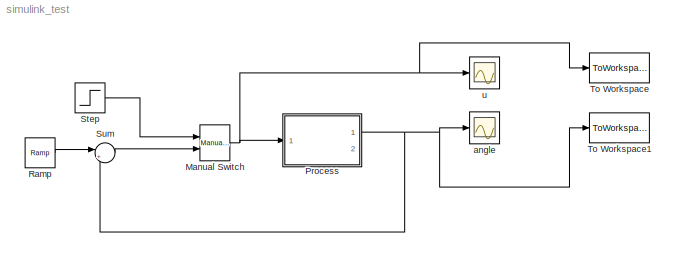
MODEL simulink_test
KIND model
BLOCK [Reference] Manual Switch  REF=simulink/Signal\nRouting/Manual Switch
  Ports = [2, 1]
  SID = 26
  SourceBlock = simulink/Signal\nRouting/Manual Switch
  SourceType = Manual Switch
  action = 0
  sw = 1
  varsize = off
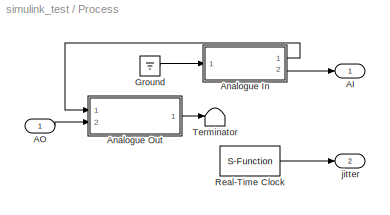
BLOCK [SubSystem] Process 
  FunctionWithSeparateData = off
  MaskCallbackString = ||
  MaskDescription = Process communication block.\nFor use with Linux on PC with I/O.
  MaskEnableString = on,on,on
  MaskHelp = AO connection - specifies the analogue output connection on the I/O module on the back of the PC.\n<p>\nAI connection - specifies the analogue input connection on the I/O module on the back of the PC.\n\n<p>\n Sample period - the sample period.\n<p>\nJitter - vector with computer CPU load during sample periods, which ranges from zero to one. If value equal to one it is likely that a sample has bee...<+9ch>
  MaskHideContents = off
  MaskIconFrame = on
  MaskIconOpaque = on
  MaskIconRotate = none
  MaskIconUnits = autoscale
  MaskPortRotate = default
  MaskPromptString = AO connection|AI connection|Sample Period
  MaskStyleString = edit,edit,edit
  MaskToolTipString = on,on,on
  MaskTunableValueString = on,on,on
  MaskType = SISO Process
  MaskValueString = 0|0|0.01
  MaskVariables = AOno=@1;AIno=@2;h=@3;
  MaskVisibilityString = on,on,on
  MinAlgLoopOccurrences = off
  Opaque = off
  Ports = [1, 2]
  PropExecContextOutsideSubsystem = off
  RTWSystemCode = Auto
  RequestExecContextInheritance = off
  SID = 1
BLOCK [Outport] Process /AI
  IconDisplay = Port number
  InitialOutput = 0
  SID = 16
BLOCK [Inport] Process /AO
  IconDisplay = Port number
  SID = 2
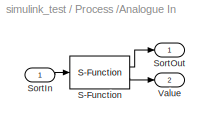
BLOCK [SubSystem] Process /Analogue In
  FunctionWithSeparateData = off
  MaskCallbackString = |
  MaskDescription = Analogue input block for use on PC running Linux.
  MaskEnableString = on,on
  MaskHideContents = off
  MaskIconFrame = on
  MaskIconOpaque = on
  MaskIconRotate = none
  MaskIconUnits = autoscale
  MaskPortRotate = default
  MaskPromptString = Sample period|Input port number
  MaskStyleString = edit,edit
  MaskToolTipString = on,on
  MaskTunableValueString = on,on
  MaskType = AnalogueIOBlock
  MaskValueString = h|AIno
  MaskVariables = h=@1;AIno=@2;
  MaskVisibilityString = on,on
  MinAlgLoopOccurrences = off
  Opaque = off
  Ports = [1, 2]
  PropExecContextOutsideSubsystem = off
  RTWSystemCode = Auto
  RequestExecContextInheritance = off
  SID = 3
BLOCK [S-Function] Process /Analogue In/S-Function
  EnableBusSupport = off
  FunctionName = analogin
  Parameters = h AIno
  Ports = [1, 2]
  SID = 5
BLOCK [Inport] Process /Analogue In/SortIn
  IconDisplay = Port number
  SID = 4
BLOCK [Outport] Process /Analogue In/SortOut
  IconDisplay = Port number
  InitialOutput = 0
  SID = 6
BLOCK [Outport] Process /Analogue In/Value
  IconDisplay = Port number
  InitialOutput = 0
  Port = 2
  SID = 7
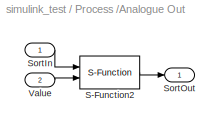
BLOCK [SubSystem] Process /Analogue Out
  FunctionWithSeparateData = off
  MaskCallbackString = |
  MaskDescription = Analogue output block for use on PC running Linux\n
  MaskEnableString = on,on
  MaskHideContents = off
  MaskIconFrame = on
  MaskIconOpaque = on
  MaskIconRotate = none
  MaskIconUnits = autoscale
  MaskPortRotate = default
  MaskPromptString = Sample period|Output port number
  MaskStyleString = edit,edit
  MaskToolTipString = on,on
  MaskTunableValueString = on,on
  MaskType = AnalogueIOBlock
  MaskValueString = h|AOno
  MaskVariables = h=@1;AOno=@2;
  MaskVisibilityString = on,on
  MinAlgLoopOccurrences = off
  Opaque = off
  Ports = [2, 1]
  PropExecContextOutsideSubsystem = off
  RTWSystemCode = Auto
  RequestExecContextInheritance = off
  SID = 8
BLOCK [S-Function] Process /Analogue Out/S-Function2
  EnableBusSupport = off
  FunctionName = analogout
  Parameters = h AOno
  Ports = [2, 1]
  SID = 11
BLOCK [Inport] Process /Analogue Out/SortIn
  IconDisplay = Port number
  SID = 9
BLOCK [Outport] Process /Analogue Out/SortOut
  IconDisplay = Port number
  InitialOutput = 0
  SID = 12
BLOCK [Inport] Process /Analogue Out/Value
  IconDisplay = Port number
  Port = 2
  SID = 10
BLOCK [Ground] Process /Ground
  SID = 13
BLOCK [S-Function] Process /Real-Time Clock
  EnableBusSupport = off
  FunctionName = realtimer
  Parameters = h
  Ports = [0, 1]
  SID = 14
BLOCK [Terminator] Process /Terminator
  SID = 15
BLOCK [Outport] Process /jitter
  IconDisplay = Port number
  Port = 2
  SID = 17
BLOCK [Reference] Ramp  REF=simulink/Sources/Ramp
  Ports = [0, 1]
  SID = 21
  SourceBlock = simulink/Sources/Ramp
  SourceType = Ramp
  VectorParams1D = on
  X0 = -5
  slope = 0.1
  start = 10
BLOCK [Step] Step
  Before = -1
  SID = 27
  SampleTime = 0
  Time = 3
BLOCK [Sum] Sum
  IconShape = round
  InputSameDT = off
  Inputs = |+-
  OutDataTypeStr = Inherit: Inherit via internal rule
  Ports = [2, 1]
  SID = 19
  SaturateOnIntegerOverflow = off
BLOCK [ToWorkspace] To Workspace
  MaxDataPoints = inf
  Ports = [1]
  SID = 23
  SampleTime = -1
  SaveFormat = Timeseries
  VariableName = u
BLOCK [ToWorkspace] To Workspace1
  MaxDataPoints = inf
  Ports = [1]
  SID = 25
  SampleTime = -1
  SaveFormat = Timeseries
  VariableName = angle
BLOCK [Scope] angle
  DataFormat = StructureWithTime
  Floating = off
  NumInputPorts = 1
  Ports = [1]
  SID = 20
  SampleTime = 0
  ShowLegends = off
  TimeRange = 200
  YMax = 7.5
  YMin = -10
BLOCK [Scope] u
  DataFormat = StructureWithTime
  Floating = off
  NumInputPorts = 1
  Ports = [1]
  SID = 22
  SampleTime = 0
  SaveName = ScopeData1
  ShowLegends = off
  TimeRange = 200
  YMax = 4
  YMin = -7
NET Manual Switch:1 -> Process :1, To Workspace:1, u:1
LINE Process /AO:1 -> Process /Analogue Out:2
LINE Process /Analogue In/S-Function:1 -> Process /Analogue In/SortOut:1
LINE Process /Analogue In/S-Function:2 -> Process /Analogue In/Value:1
LINE Process /Analogue In/SortIn:1 -> Process /Analogue In/S-Function:1
LINE Process /Analogue In:1 -> Process /Analogue Out:1
LINE Process /Analogue In:2 -> Process /AI:1
LINE Process /Analogue Out/S-Function2:1 -> Process /Analogue Out/SortOut:1
LINE Process /Analogue Out/SortIn:1 -> Process /Analogue Out/S-Function2:1
LINE Process /Analogue Out/Value:1 -> Process /Analogue Out/S-Function2:2
LINE Process /Analogue Out:1 -> Process /Terminator:1
LINE Process /Ground:1 -> Process /Analogue In:1
LINE Process /Real-Time Clock:1 -> Process /jitter:1
NET Process :1 -> Sum:2, To Workspace1:1, angle:1
LINE Ramp:1 -> Sum:1
LINE Step:1 -> Manual Switch:1
LINE Sum:1 -> Manual Switch:2
note: NET lines group one-source signal fan-out (src -> all destinations, sorted); 1:1 wires keep LINE
